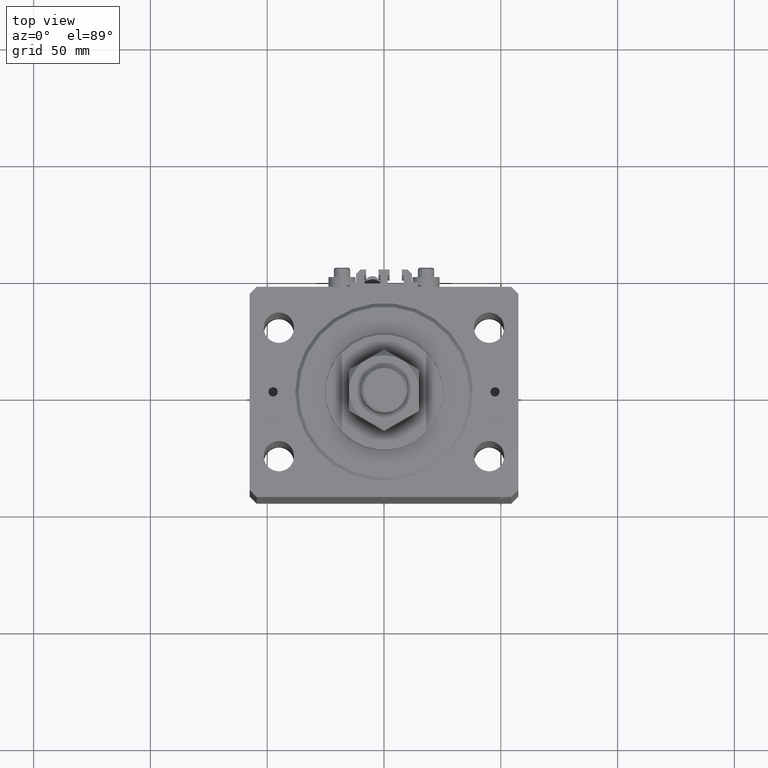
[diagram: clean part render]
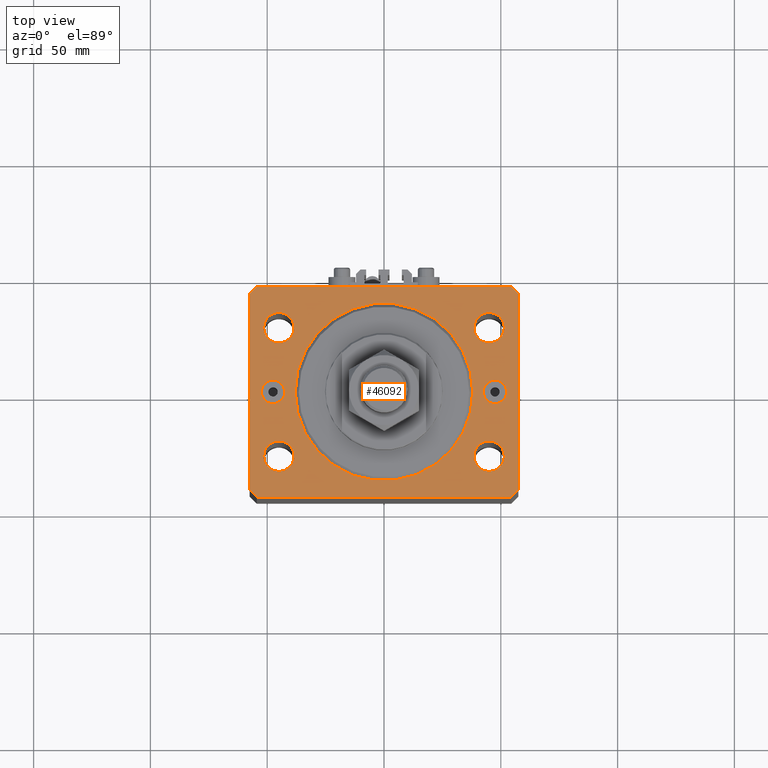
[diagram: same view with one face highlighted and labeled with its STEP entity id]
A machine part, top view. The second image highlights one B-rep face of the part: STEP entity #46092.
In plain terms, the highlighted planar face has unit normal (0, 0, 1).
Its self-contained STEP definition (entity closure, byte-faithful):
#213 = FACE_BOUND ( 'NONE', #5660, .T. ) ;
#259 = LINE ( 'NONE', #35108, #46290 ) ;
#354 = VERTEX_POINT ( 'NONE', #14993 ) ;
#438 = CIRCLE ( 'NONE', #28454, 6.499999999999999112 ) ;
#506 = AXIS2_PLACEMENT_3D ( 'NONE', #31249, #1137, #46799 ) ;
#592 = CARTESIAN_POINT ( 'NONE',  ( -54.50000000000000711, -45.00000000000000000, 0.000000000000000000 ) ) ;
#678 = CIRCLE ( 'NONE', #21477, 6.499999999999999112 ) ;
#719 = CIRCLE ( 'NONE', #28734, 4.999999999999997335 ) ;
#797 = VECTOR ( 'NONE', #16966, 1000.000000000000000 ) ;
#920 = DIRECTION ( 'NONE',  ( 0.7071067811865483499, 0.7071067811865466846, 0.000000000000000000 ) ) ;
#939 = FACE_BOUND ( 'NONE', #23992, .T. ) ;
#1137 = DIRECTION ( 'NONE',  ( 0.000000000000000000, 0.000000000000000000, 1.000000000000000000 ) ) ;
#1273 = ORIENTED_EDGE ( 'NONE', *, *, #7482, .F. ) ;
#1366 = CARTESIAN_POINT ( 'NONE',  ( -44.99999999999998579, -27.50000000000000355, 0.000000000000000000 ) ) ;
#2329 = CIRCLE ( 'NONE', #31149, 6.499999999999999112 ) ;
#2765 = CARTESIAN_POINT ( 'NONE',  ( -42.50000000000000000, 0.000000000000000000, 0.000000000000000000 ) ) ;
#3340 = EDGE_LOOP ( 'NONE', ( #47885, #17755 ) ) ;
#3343 = CARTESIAN_POINT ( 'NONE',  ( -51.50000000000000000, 27.49999999999999645, 0.000000000000000000 ) ) ;
#3411 = CARTESIAN_POINT ( 'NONE',  ( -38.49999999999998579, -27.50000000000000355, 0.000000000000000000 ) ) ;
#3445 = ORIENTED_EDGE ( 'NONE', *, *, #24009, .F. ) ;
#3712 = DIRECTION ( 'NONE',  ( 0.000000000000000000, 0.000000000000000000, 1.000000000000000000 ) ) ;
#3938 = CARTESIAN_POINT ( 'NONE',  ( -54.49999999999999289, 45.00000000000000000, 0.000000000000000000 ) ) ;
#4073 = ORIENTED_EDGE ( 'NONE', *, *, #47899, .F. ) ;
#4414 = EDGE_CURVE ( 'NONE', #21386, #8431, #13171, .T. ) ;
#4441 = CARTESIAN_POINT ( 'NONE',  ( 54.50000000000000711, -44.99999999999998579, 0.000000000000000000 ) ) ;
#4567 = CARTESIAN_POINT ( 'NONE',  ( 54.50000000000059686, 45.00000000000002842, 0.000000000000000000 ) ) ;
#4645 = DIRECTION ( 'NONE',  ( -0.7071067811865483499, -0.7071067811865466846, 0.000000000000000000 ) ) ;
#4788 = VERTEX_POINT ( 'NONE', #45269 ) ;
#5247 = VERTEX_POINT ( 'NONE', #2765 ) ;
#5460 = ORIENTED_EDGE ( 'NONE', *, *, #27669, .F. ) ;
#5494 = CARTESIAN_POINT ( 'NONE',  ( -57.50000000000000711, -42.00000000000000711, 0.000000000000000000 ) ) ;
#5542 = VERTEX_POINT ( 'NONE', #21963 ) ;
#5549 = CIRCLE ( 'NONE', #33618, 6.499999999999999112 ) ;
#5660 = EDGE_LOOP ( 'NONE', ( #6882, #27037 ) ) ;
#5793 = DIRECTION ( 'NONE',  ( 1.000000000000000000, 0.000000000000000000, 0.000000000000000000 ) ) ;
#5904 = AXIS2_PLACEMENT_3D ( 'NONE', #6741, #3712, #14263 ) ;
#5966 = VERTEX_POINT ( 'NONE', #4567 ) ;
#6271 = VERTEX_POINT ( 'NONE', #5494 ) ;
#6286 = EDGE_CURVE ( 'NONE', #7219, #5966, #13511, .T. ) ;
#6741 = CARTESIAN_POINT ( 'NONE',  ( 0.000000000000000000, 0.000000000000000000, 0.000000000000000000 ) ) ;
#6882 = ORIENTED_EDGE ( 'NONE', *, *, #35644, .T. ) ;
#6932 = CARTESIAN_POINT ( 'NONE',  ( -38.00000000000000000, 4.653657836759941941E-15, 0.000000000000000000 ) ) ;
#6949 = DIRECTION ( 'NONE',  ( 1.000000000000000000, 0.000000000000000000, 0.000000000000000000 ) ) ;
#7219 = VERTEX_POINT ( 'NONE', #23161 ) ;
#7482 = EDGE_CURVE ( 'NONE', #36553, #4788, #36325, .T. ) ;
#7509 = LINE ( 'NONE', #22800, #40491 ) ;
#7894 = EDGE_CURVE ( 'NONE', #26667, #25120, #45948, .T. ) ;
#7995 = DIRECTION ( 'NONE',  ( 1.000000000000000000, 0.000000000000000000, 0.000000000000000000 ) ) ;
#8000 = DIRECTION ( 'NONE',  ( 1.000000000000000000, 0.000000000000000000, -0.000000000000000000 ) ) ;
#8159 = CARTESIAN_POINT ( 'NONE',  ( 47.50000000000000000, 0.000000000000000000, 0.000000000000000000 ) ) ;
#8237 = FACE_OUTER_BOUND ( 'NONE', #29331, .T. ) ;
#8431 = VERTEX_POINT ( 'NONE', #36158 ) ;
#8911 = ORIENTED_EDGE ( 'NONE', *, *, #36860, .T. ) ;
#9157 = EDGE_LOOP ( 'NONE', ( #16150, #5460 ) ) ;
#9188 = LINE ( 'NONE', #4441, #15120 ) ;
#9588 = ORIENTED_EDGE ( 'NONE', *, *, #24692, .T. ) ;
#10064 = DIRECTION ( 'NONE',  ( 1.000000000000000000, 0.000000000000000000, 0.000000000000000000 ) ) ;
#10234 = VERTEX_POINT ( 'NONE', #16302 ) ;
#10360 = AXIS2_PLACEMENT_3D ( 'NONE', #11748, #31780, #8000 ) ;
#10557 = LINE ( 'NONE', #48685, #23880 ) ;
#11339 = EDGE_CURVE ( 'NONE', #10234, #6271, #48408, .T. ) ;
#11502 = DIRECTION ( 'NONE',  ( 0.000000000000000000, 0.000000000000000000, 1.000000000000000000 ) ) ;
#11590 = CARTESIAN_POINT ( 'NONE',  ( 57.50000000000000711, -41.99999999999998579, 0.000000000000000000 ) ) ;
#11650 = DIRECTION ( 'NONE',  ( 0.000000000000000000, 0.000000000000000000, 1.000000000000000000 ) ) ;
#11748 = CARTESIAN_POINT ( 'NONE',  ( 0.000000000000000000, 0.000000000000000000, 0.000000000000000000 ) ) ;
#12341 = EDGE_CURVE ( 'NONE', #8431, #21386, #678, .T. ) ;
#12362 = CARTESIAN_POINT ( 'NONE',  ( -45.00000000000000000, 27.49999999999999645, 0.000000000000000000 ) ) ;
#12502 = ORIENTED_EDGE ( 'NONE', *, *, #25332, .F. ) ;
#13171 = CIRCLE ( 'NONE', #42821, 6.499999999999999112 ) ;
#13242 = EDGE_CURVE ( 'NONE', #29453, #29022, #9188, .T. ) ;
#13511 = LINE ( 'NONE', #21276, #49138 ) ;
#14263 = DIRECTION ( 'NONE',  ( 1.000000000000000000, 0.000000000000000000, 0.000000000000000000 ) ) ;
#14722 = AXIS2_PLACEMENT_3D ( 'NONE', #32634, #44413, #10064 ) ;
#14977 = EDGE_LOOP ( 'NONE', ( #20521, #1273 ) ) ;
#14993 = CARTESIAN_POINT ( 'NONE',  ( 52.50000000000000000, 0.000000000000000000, 0.000000000000000000 ) ) ;
#15120 = VECTOR ( 'NONE', #920, 1000.000000000000000 ) ;
#15230 = DIRECTION ( 'NONE',  ( 0.000000000000000000, 0.000000000000000000, 1.000000000000000000 ) ) ;
#15726 = CIRCLE ( 'NONE', #506, 38.00000000000000000 ) ;
#16150 = ORIENTED_EDGE ( 'NONE', *, *, #7894, .F. ) ;
#16302 = CARTESIAN_POINT ( 'NONE',  ( -57.49999999999998579, 42.00000000000000711, 0.000000000000000000 ) ) ;
#16485 = FACE_BOUND ( 'NONE', #30896, .T. ) ;
#16603 = DIRECTION ( 'NONE',  ( 1.000000000000000000, 0.000000000000000000, 0.000000000000000000 ) ) ;
#16966 = DIRECTION ( 'NONE',  ( -1.000000000000000000, -2.546383084002638829E-16, 0.000000000000000000 ) ) ;
#17004 = ORIENTED_EDGE ( 'NONE', *, *, #47109, .F. ) ;
#17189 = EDGE_CURVE ( 'NONE', #5247, #29967, #40371, .T. ) ;
#17291 = DIRECTION ( 'NONE',  ( -2.478176394252581141E-16, -1.000000000000000000, 0.000000000000000000 ) ) ;
#17300 = CARTESIAN_POINT ( 'NONE',  ( -52.50000000000000000, 6.123233995736762338E-16, 0.000000000000000000 ) ) ;
#17501 = DIRECTION ( 'NONE',  ( 0.000000000000000000, 0.000000000000000000, 1.000000000000000000 ) ) ;
#17755 = ORIENTED_EDGE ( 'NONE', *, *, #12341, .F. ) ;
#17762 = ORIENTED_EDGE ( 'NONE', *, *, #17189, .F. ) ;
#18073 = DIRECTION ( 'NONE',  ( 1.000000000000000000, 0.000000000000000000, 0.000000000000000000 ) ) ;
#18351 = VERTEX_POINT ( 'NONE', #3411 ) ;
#18719 = CARTESIAN_POINT ( 'NONE',  ( 54.50000000000000711, -44.99999999999998579, 0.000000000000000000 ) ) ;
#19158 = AXIS2_PLACEMENT_3D ( 'NONE', #21083, #43668, #5793 ) ;
#19262 = FACE_BOUND ( 'NONE', #3340, .T. ) ;
#19510 = FACE_BOUND ( 'NONE', #14977, .T. ) ;
#19775 = CARTESIAN_POINT ( 'NONE',  ( -44.99999999999998579, -27.50000000000000355, 0.000000000000000000 ) ) ;
#20012 = FACE_BOUND ( 'NONE', #9157, .T. ) ;
#20184 = LINE ( 'NONE', #31714, #35123 ) ;
#20356 = AXIS2_PLACEMENT_3D ( 'NONE', #34139, #22848, #18073 ) ;
#20512 = DIRECTION ( 'NONE',  ( 0.000000000000000000, 0.000000000000000000, 1.000000000000000000 ) ) ;
#20521 = ORIENTED_EDGE ( 'NONE', *, *, #45346, .F. ) ;
#21083 = CARTESIAN_POINT ( 'NONE',  ( 47.50000000000000000, 0.000000000000000000, 0.000000000000000000 ) ) ;
#21276 = CARTESIAN_POINT ( 'NONE',  ( 57.50000000000055422, 41.99999999999997868, 0.000000000000000000 ) ) ;
#21308 = CARTESIAN_POINT ( 'NONE',  ( -57.49999999999998579, 42.00000000000000711, 0.000000000000000000 ) ) ;
#21386 = VERTEX_POINT ( 'NONE', #46002 ) ;
#21477 = AXIS2_PLACEMENT_3D ( 'NONE', #46010, #11650, #30950 ) ;
#21963 = CARTESIAN_POINT ( 'NONE',  ( -51.49999999999998579, -27.50000000000000355, 0.000000000000000000 ) ) ;
#22017 = ORIENTED_EDGE ( 'NONE', *, *, #13242, .T. ) ;
#22072 = VERTEX_POINT ( 'NONE', #3938 ) ;
#22092 = DIRECTION ( 'NONE',  ( 6.443258625056715108E-15, 1.000000000000000000, 0.000000000000000000 ) ) ;
#22677 = VERTEX_POINT ( 'NONE', #32062 ) ;
#22800 = CARTESIAN_POINT ( 'NONE',  ( -57.50000000000000711, -42.00000000000000711, 0.000000000000000000 ) ) ;
#22848 = DIRECTION ( 'NONE',  ( 0.000000000000000000, 0.000000000000000000, 1.000000000000000000 ) ) ;
#23161 = CARTESIAN_POINT ( 'NONE',  ( 57.50000000000055422, 41.99999999999997868, 0.000000000000000000 ) ) ;
#23796 = DIRECTION ( 'NONE',  ( 1.000000000000000000, 0.000000000000000000, 0.000000000000000000 ) ) ;
#23880 = VECTOR ( 'NONE', #22092, 1000.000000000000000 ) ;
#23992 = EDGE_LOOP ( 'NONE', ( #17762, #17004 ) ) ;
#24009 = EDGE_CURVE ( 'NONE', #38605, #29502, #42289, .T. ) ;
#24692 = EDGE_CURVE ( 'NONE', #46341, #29453, #259, .T. ) ;
#25120 = VERTEX_POINT ( 'NONE', #6932 ) ;
#25332 = EDGE_CURVE ( 'NONE', #18351, #5542, #438, .T. ) ;
#26050 = DIRECTION ( 'NONE',  ( 0.7071067811865491270, -0.7071067811865459074, 0.000000000000000000 ) ) ;
#26142 = CIRCLE ( 'NONE', #29318, 6.499999999999999112 ) ;
#26667 = VERTEX_POINT ( 'NONE', #41491 ) ;
#26752 = ORIENTED_EDGE ( 'NONE', *, *, #44154, .T. ) ;
#27037 = ORIENTED_EDGE ( 'NONE', *, *, #36074, .T. ) ;
#27206 = DIRECTION ( 'NONE',  ( 0.000000000000000000, -0.000000000000000000, -1.000000000000000000 ) ) ;
#27316 = EDGE_CURVE ( 'NONE', #6271, #46341, #7509, .T. ) ;
#27669 = EDGE_CURVE ( 'NONE', #25120, #26667, #15726, .T. ) ;
#28050 = ORIENTED_EDGE ( 'NONE', *, *, #6286, .T. ) ;
#28454 = AXIS2_PLACEMENT_3D ( 'NONE', #1366, #31965, #35249 ) ;
#28545 = DIRECTION ( 'NONE',  ( -0.7071067811865369146, 0.7071067811865581199, 0.000000000000000000 ) ) ;
#28734 = AXIS2_PLACEMENT_3D ( 'NONE', #8159, #27206, #41593 ) ;
#29022 = VERTEX_POINT ( 'NONE', #11590 ) ;
#29318 = AXIS2_PLACEMENT_3D ( 'NONE', #19775, #20512, #23796 ) ;
#29331 = EDGE_LOOP ( 'NONE', ( #8911, #32293, #39636, #40237, #9588, #22017, #26752, #28050 ) ) ;
#29453 = VERTEX_POINT ( 'NONE', #18719 ) ;
#29502 = VERTEX_POINT ( 'NONE', #30763 ) ;
#29967 = VERTEX_POINT ( 'NONE', #17300 ) ;
#30034 = DIRECTION ( 'NONE',  ( 1.000000000000000000, 0.000000000000000000, 0.000000000000000000 ) ) ;
#30610 = DIRECTION ( 'NONE',  ( 1.000000000000000000, 1.273191542001326317E-16, 0.000000000000000000 ) ) ;
#30763 = CARTESIAN_POINT ( 'NONE',  ( -38.50000000000000000, 27.49999999999999645, 0.000000000000000000 ) ) ;
#30896 = EDGE_LOOP ( 'NONE', ( #12502, #4073 ) ) ;
#30950 = DIRECTION ( 'NONE',  ( 1.000000000000000000, 0.000000000000000000, 0.000000000000000000 ) ) ;
#31071 = AXIS2_PLACEMENT_3D ( 'NONE', #40650, #49430, #37632 ) ;
#31149 = AXIS2_PLACEMENT_3D ( 'NONE', #42347, #11502, #7995 ) ;
#31249 = CARTESIAN_POINT ( 'NONE',  ( 0.000000000000000000, 0.000000000000000000, 0.000000000000000000 ) ) ;
#31301 = ORIENTED_EDGE ( 'NONE', *, *, #33565, .F. ) ;
#31714 = CARTESIAN_POINT ( 'NONE',  ( -54.49999999999999289, 45.00000000000000000, 0.000000000000000000 ) ) ;
#31780 = DIRECTION ( 'NONE',  ( 0.000000000000000000, 0.000000000000000000, 1.000000000000000000 ) ) ;
#31965 = DIRECTION ( 'NONE',  ( 0.000000000000000000, 0.000000000000000000, 1.000000000000000000 ) ) ;
#32062 = CARTESIAN_POINT ( 'NONE',  ( 42.50000000000000000, 6.123233995736762338E-16, 0.000000000000000000 ) ) ;
#32293 = ORIENTED_EDGE ( 'NONE', *, *, #44958, .T. ) ;
#32634 = CARTESIAN_POINT ( 'NONE',  ( 45.00000000000000000, 27.49999999999999289, 0.000000000000000000 ) ) ;
#33565 = EDGE_CURVE ( 'NONE', #29502, #38605, #5549, .T. ) ;
#33618 = AXIS2_PLACEMENT_3D ( 'NONE', #12362, #43683, #16603 ) ;
#34139 = CARTESIAN_POINT ( 'NONE',  ( -47.50000000000000000, 0.000000000000000000, 0.000000000000000000 ) ) ;
#35108 = CARTESIAN_POINT ( 'NONE',  ( -54.50000000000000711, -45.00000000000000000, 0.000000000000000000 ) ) ;
#35123 = VECTOR ( 'NONE', #4645, 1000.000000000000000 ) ;
#35249 = DIRECTION ( 'NONE',  ( 1.000000000000000000, 0.000000000000000000, 0.000000000000000000 ) ) ;
#35309 = PLANE ( 'NONE',  #10360 ) ;
#35644 = EDGE_CURVE ( 'NONE', #354, #22677, #719, .T. ) ;
#35977 = CIRCLE ( 'NONE', #19158, 4.999999999999997335 ) ;
#36074 = EDGE_CURVE ( 'NONE', #22677, #354, #35977, .T. ) ;
#36158 = CARTESIAN_POINT ( 'NONE',  ( 38.49999999999998579, -27.50000000000000355, 0.000000000000000000 ) ) ;
#36325 = CIRCLE ( 'NONE', #14722, 6.499999999999999112 ) ;
#36512 = AXIS2_PLACEMENT_3D ( 'NONE', #41060, #15230, #6949 ) ;
#36553 = VERTEX_POINT ( 'NONE', #36837 ) ;
#36837 = CARTESIAN_POINT ( 'NONE',  ( 38.50000000000000000, 27.49999999999999289, 0.000000000000000000 ) ) ;
#36860 = EDGE_CURVE ( 'NONE', #5966, #22072, #48081, .T. ) ;
#37306 = CARTESIAN_POINT ( 'NONE',  ( 44.99999999999998579, -27.50000000000000355, 0.000000000000000000 ) ) ;
#37632 = DIRECTION ( 'NONE',  ( 1.000000000000000000, 0.000000000000000000, 0.000000000000000000 ) ) ;
#38366 = EDGE_LOOP ( 'NONE', ( #31301, #3445 ) ) ;
#38605 = VERTEX_POINT ( 'NONE', #3343 ) ;
#39636 = ORIENTED_EDGE ( 'NONE', *, *, #11339, .T. ) ;
#40237 = ORIENTED_EDGE ( 'NONE', *, *, #27316, .T. ) ;
#40371 = CIRCLE ( 'NONE', #20356, 4.999999999999997335 ) ;
#40491 = VECTOR ( 'NONE', #26050, 1000.000000000000114 ) ;
#40650 = CARTESIAN_POINT ( 'NONE',  ( -45.00000000000000000, 27.49999999999999645, 0.000000000000000000 ) ) ;
#40796 = CARTESIAN_POINT ( 'NONE',  ( 54.50000000000059686, 45.00000000000002842, 0.000000000000000000 ) ) ;
#41060 = CARTESIAN_POINT ( 'NONE',  ( -47.50000000000000000, 0.000000000000000000, 0.000000000000000000 ) ) ;
#41491 = CARTESIAN_POINT ( 'NONE',  ( 38.00000000000000000, 0.000000000000000000, 0.000000000000000000 ) ) ;
#41508 = VECTOR ( 'NONE', #17291, 1000.000000000000000 ) ;
#41593 = DIRECTION ( 'NONE',  ( 1.000000000000000000, 0.000000000000000000, 0.000000000000000000 ) ) ;
#42289 = CIRCLE ( 'NONE', #31071, 6.499999999999999112 ) ;
#42347 = CARTESIAN_POINT ( 'NONE',  ( 45.00000000000000000, 27.49999999999999289, 0.000000000000000000 ) ) ;
#42821 = AXIS2_PLACEMENT_3D ( 'NONE', #37306, #17501, #30034 ) ;
#43668 = DIRECTION ( 'NONE',  ( 0.000000000000000000, -0.000000000000000000, -1.000000000000000000 ) ) ;
#43683 = DIRECTION ( 'NONE',  ( 0.000000000000000000, 0.000000000000000000, 1.000000000000000000 ) ) ;
#44154 = EDGE_CURVE ( 'NONE', #29022, #7219, #10557, .T. ) ;
#44413 = DIRECTION ( 'NONE',  ( 0.000000000000000000, 0.000000000000000000, 1.000000000000000000 ) ) ;
#44958 = EDGE_CURVE ( 'NONE', #22072, #10234, #20184, .T. ) ;
#45269 = CARTESIAN_POINT ( 'NONE',  ( 51.50000000000000000, 27.49999999999999289, 0.000000000000000000 ) ) ;
#45346 = EDGE_CURVE ( 'NONE', #4788, #36553, #2329, .T. ) ;
#45948 = CIRCLE ( 'NONE', #5904, 38.00000000000000000 ) ;
#46002 = CARTESIAN_POINT ( 'NONE',  ( 51.49999999999998579, -27.50000000000000355, 0.000000000000000000 ) ) ;
#46010 = CARTESIAN_POINT ( 'NONE',  ( 44.99999999999998579, -27.50000000000000355, 0.000000000000000000 ) ) ;
#46092 = ADVANCED_FACE ( 'NONE', ( #8237, #46107, #19510, #19262, #16485, #20012, #939, #213 ), #35309, .T. ) ;
#46107 = FACE_BOUND ( 'NONE', #38366, .T. ) ;
#46290 = VECTOR ( 'NONE', #30610, 1000.000000000000000 ) ;
#46341 = VERTEX_POINT ( 'NONE', #592 ) ;
#46799 = DIRECTION ( 'NONE',  ( 1.000000000000000000, 0.000000000000000000, 0.000000000000000000 ) ) ;
#47109 = EDGE_CURVE ( 'NONE', #29967, #5247, #48527, .T. ) ;
#47885 = ORIENTED_EDGE ( 'NONE', *, *, #4414, .F. ) ;
#47899 = EDGE_CURVE ( 'NONE', #5542, #18351, #26142, .T. ) ;
#48081 = LINE ( 'NONE', #40796, #797 ) ;
#48408 = LINE ( 'NONE', #21308, #41508 ) ;
#48527 = CIRCLE ( 'NONE', #36512, 4.999999999999997335 ) ;
#48685 = CARTESIAN_POINT ( 'NONE',  ( 57.50000000000000711, -41.99999999999998579, 0.000000000000000000 ) ) ;
#49138 = VECTOR ( 'NONE', #28545, 1000.000000000000000 ) ;
#49430 = DIRECTION ( 'NONE',  ( 0.000000000000000000, 0.000000000000000000, 1.000000000000000000 ) ) ;